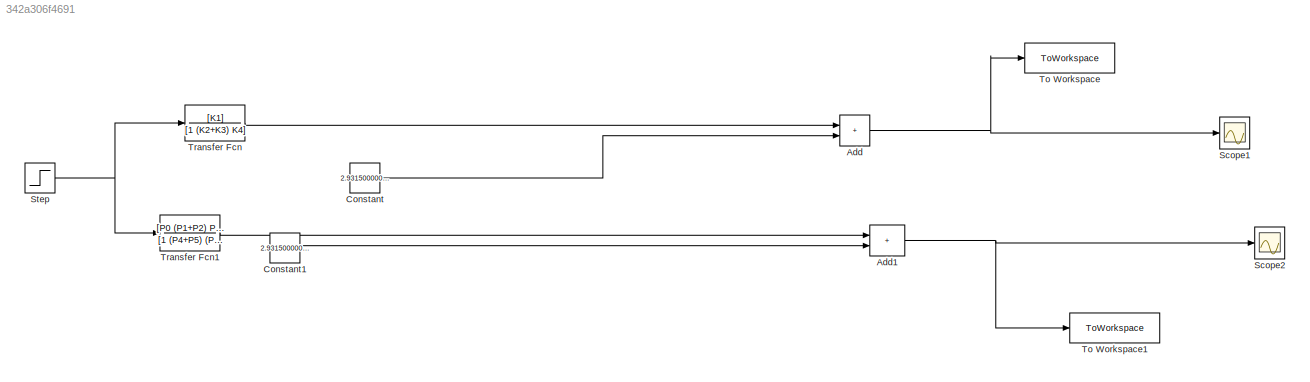
MODEL slx_342a306f4691
KIND model
CONFIG AbsTol = auto
CONFIG EnableMultiTasking = off
CONFIG FixedStep = auto
CONFIG MaxStep = auto
CONFIG MinStep = auto
CONFIG RelTol = 1e-3
CONFIG SampleTimeConstraint = Unconstrained
CONFIG SolverName = VariableStepAuto
CONFIG StartTime = 0.0
CONFIG StopTime = 10000
BLOCK [Sum] Add
  IconShape = rectangular
  Ports = [2, 1]
BLOCK [Sum] Add1
  IconShape = rectangular
  Ports = [2, 1]
BLOCK [Constant] Constant
  Value = 2.931500000000000e+02
BLOCK [Constant] Constant1
  Value = 2.931500000000000e+02
BLOCK [Scope] Scope1
  Floating = off
  NumInputPorts = 1
  Ports = [1]
  ScopeSpecificationString = Simulink.scopes.TimeScopeBlockCfg('CurrentConfiguration', extmgr.ConfigurationSet(extmgr.Configuration('Core','General UI',true),extmgr.Configuration('Core','Source UI',true),extmgr.Configuration('Sources','WiredSimulink',true,'DataLoggingVariableName','ScopeData1'),extmgr.Configuration('Visuals','Time Domain',true,'SerializedDisplays',{struct('MinYLimReal','291.9','MaxYLimReal','304.4','YLabelRea...<+1396ch>
BLOCK [Scope] Scope2
  Floating = off
  NumInputPorts = 1
  Ports = [1]
  ScopeSpecificationString = Simulink.scopes.TimeScopeBlockCfg('CurrentConfiguration', extmgr.ConfigurationSet(extmgr.Configuration('Core','General UI',true),extmgr.Configuration('Core','Source UI',true),extmgr.Configuration('Sources','WiredSimulink',true,'DataLoggingVariableName','ScopeData1'),extmgr.Configuration('Visuals','Time Domain',true,'SerializedDisplays',{struct('MinYLimReal','290.65','MaxYLimReal','315.65','YLabelR...<+1405ch>
BLOCK [Step] Step
  After = 3
  SampleTime = 0
  Time = 600
BLOCK [ToWorkspace] To Workspace
  FixptAsFi = on
  MaxDataPoints = inf
  Ports = [1]
  SampleTime = -1
  SaveFormat = Timeseries
  VariableName = simout
BLOCK [ToWorkspace] To Workspace1
  FixptAsFi = on
  MaxDataPoints = inf
  Ports = [1]
  SampleTime = -1
  SaveFormat = Timeseries
  VariableName = simout1
BLOCK [TransferFcn] Transfer Fcn
  Denominator = [1 (K2+K3) K4]
  Numerator = [K1]
BLOCK [TransferFcn] Transfer Fcn1
  Denominator = [1 (P4+P5) (P6+P7+P8) P9]
  Numerator = [P0 (P1+P2) P3]
NET Add1:1 -> Scope2:1, To Workspace1:1
NET Add:1 -> Scope1:1, To Workspace:1
LINE Constant1:1 -> Add1:2
LINE Constant:1 -> Add:2
NET Step:1 -> Transfer Fcn1:1, Transfer Fcn:1
LINE Transfer Fcn1:1 -> Add1:1
LINE Transfer Fcn:1 -> Add:1
note: NET lines group one-source signal fan-out (src -> all destinations, sorted); 1:1 wires keep LINE
